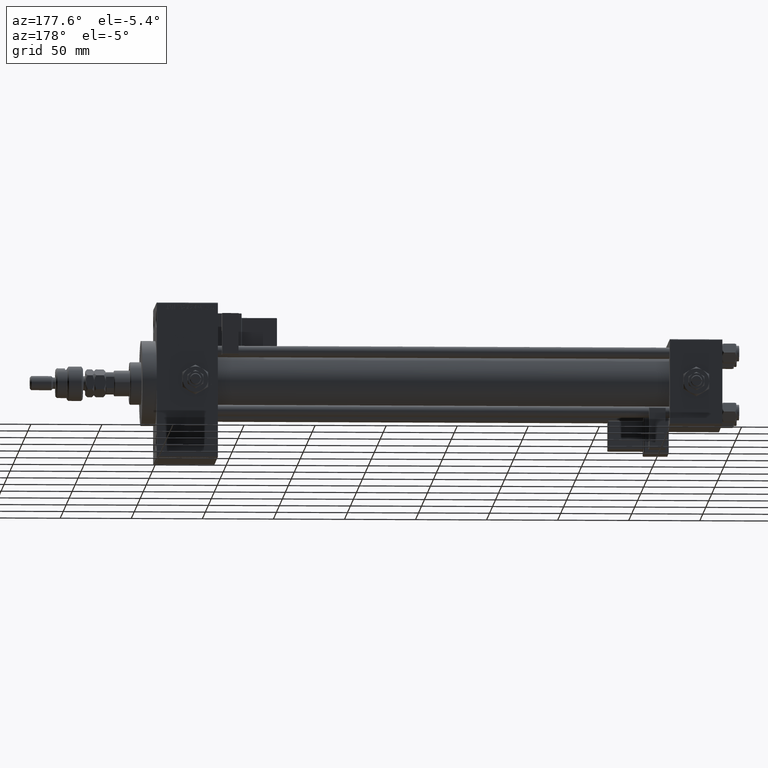
[diagram: clean part render]
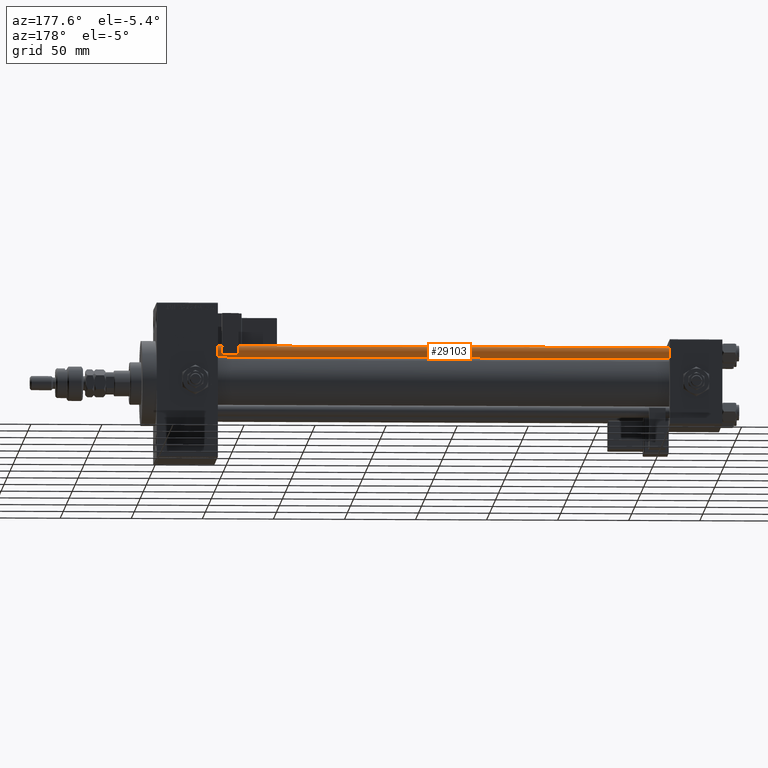
[diagram: same view with one face highlighted and labeled with its STEP entity id]
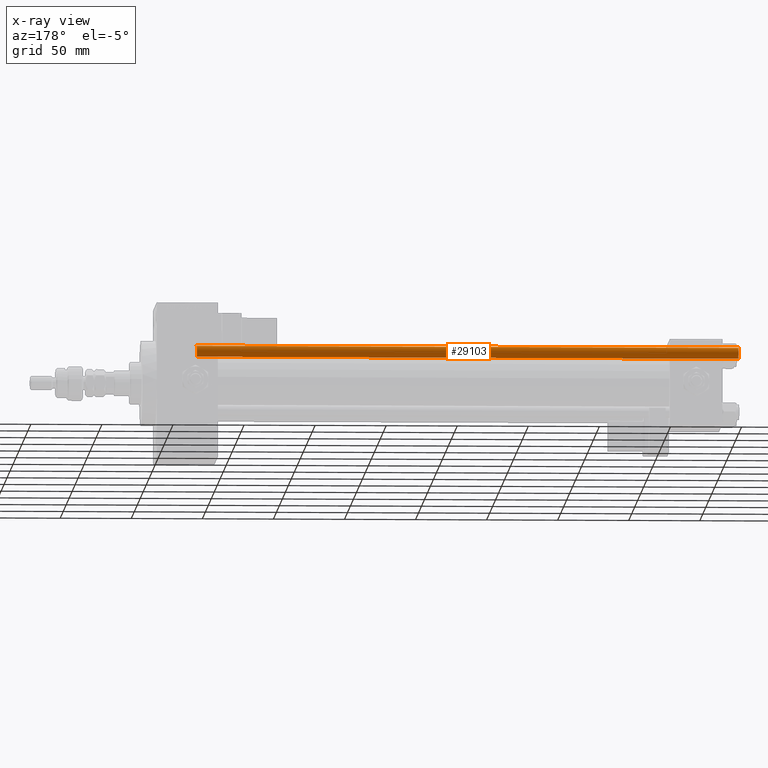
[diagram: x-ray of the same camera — body ghosted, the highlighted face saturated]
A machine part, auxiliary view. The second image highlights one B-rep face of the part: STEP entity #29103.
The next image is the same camera in x-ray: the body ghosted, the highlighted face saturated — about 0% of this face is hidden behind the body in this view.
In plain terms, the highlighted cylindrical surface (edge-blend (fillet) strip) has radius 4 mm, axis along (-1, -0, 0).
Its self-contained STEP definition (entity closure, byte-faithful):
#510 = AXIS2_PLACEMENT_3D ( 'NONE', #44819, #36306, #36030 ) ;
#787 = EDGE_CURVE ( 'NONE', #7305, #53220, #5311, .T. ) ;
#2164 = CARTESIAN_POINT ( 'NONE',  ( -4.000000000000000000, 0.000000000000000000, 0.5000000000000559552 ) ) ;
#2701 = VECTOR ( 'NONE', #49748, 1000.000000000000000 ) ;
#5311 = LINE ( 'NONE', #38821, #6866 ) ;
#6866 = VECTOR ( 'NONE', #9172, 1000.000000000000000 ) ;
#7305 = VERTEX_POINT ( 'NONE', #41522 ) ;
#7905 = FACE_OUTER_BOUND ( 'NONE', #21553, .T. ) ;
#9172 = DIRECTION ( 'NONE',  ( -0.000000000000000000, -0.000000000000000000, -1.000000000000000000 ) ) ;
#9271 = CIRCLE ( 'NONE', #510, 4.000000000000000000 ) ;
#12071 = ORIENTED_EDGE ( 'NONE', *, *, #20476, .T. ) ;
#14481 = ORIENTED_EDGE ( 'NONE', *, *, #44529, .T. ) ;
#14575 = CIRCLE ( 'NONE', #48687, 4.000000000000000000 ) ;
#15600 = CARTESIAN_POINT ( 'NONE',  ( 0.000000000000000000, 0.000000000000000000, 382.0000000000000000 ) ) ;
#17384 = ORIENTED_EDGE ( 'NONE', *, *, #30814, .T. ) ;
#20476 = EDGE_CURVE ( 'NONE', #25772, #53220, #14575, .T. ) ;
#20767 = DIRECTION ( 'NONE',  ( 1.000000000000000000, 0.000000000000000000, 0.000000000000000000 ) ) ;
#21553 = EDGE_LOOP ( 'NONE', ( #17384, #14481, #12071, #43607 ) ) ;
#24644 = DIRECTION ( 'NONE',  ( -0.000000000000000000, -0.000000000000000000, -1.000000000000000000 ) ) ;
#25006 = LINE ( 'NONE', #53596, #2701 ) ;
#25772 = VERTEX_POINT ( 'NONE', #36170 ) ;
#28264 = VERTEX_POINT ( 'NONE', #37635 ) ;
#29103 = ADVANCED_FACE ( 'NONE', ( #7905 ), #40592, .T. ) ;
#30814 = EDGE_CURVE ( 'NONE', #7305, #28264, #9271, .T. ) ;
#32329 = DIRECTION ( 'NONE',  ( -1.000000000000000000, 0.000000000000000000, 0.000000000000000000 ) ) ;
#33655 = DIRECTION ( 'NONE',  ( -0.000000000000000000, -0.000000000000000000, 1.000000000000000000 ) ) ;
#36030 = DIRECTION ( 'NONE',  ( 1.000000000000000000, 0.000000000000000000, 0.000000000000000000 ) ) ;
#36170 = CARTESIAN_POINT ( 'NONE',  ( 4.000000000000000000, 4.898587196589412829E-16, 0.5000000000000559552 ) ) ;
#36306 = DIRECTION ( 'NONE',  ( 0.000000000000000000, 0.000000000000000000, -1.000000000000000000 ) ) ;
#37635 = CARTESIAN_POINT ( 'NONE',  ( 4.000000000000000000, 4.898587196589412829E-16, 381.5000000000000568 ) ) ;
#38821 = CARTESIAN_POINT ( 'NONE',  ( -4.000000000000000000, 0.000000000000000000, 382.0000000000000000 ) ) ;
#40592 = CYLINDRICAL_SURFACE ( 'NONE', #51310, 4.000000000000000000 ) ;
#41376 = CARTESIAN_POINT ( 'NONE',  ( 0.000000000000000000, 0.000000000000000000, 0.5000000000000559552 ) ) ;
#41522 = CARTESIAN_POINT ( 'NONE',  ( -4.000000000000000000, 0.000000000000000000, 381.5000000000000568 ) ) ;
#43607 = ORIENTED_EDGE ( 'NONE', *, *, #787, .F. ) ;
#44529 = EDGE_CURVE ( 'NONE', #28264, #25772, #25006, .T. ) ;
#44819 = CARTESIAN_POINT ( 'NONE',  ( 0.000000000000000000, 0.000000000000000000, 381.5000000000000568 ) ) ;
#48687 = AXIS2_PLACEMENT_3D ( 'NONE', #41376, #33655, #20767 ) ;
#49748 = DIRECTION ( 'NONE',  ( -0.000000000000000000, -0.000000000000000000, -1.000000000000000000 ) ) ;
#51310 = AXIS2_PLACEMENT_3D ( 'NONE', #15600, #24644, #32329 ) ;
#53220 = VERTEX_POINT ( 'NONE', #2164 ) ;
#53596 = CARTESIAN_POINT ( 'NONE',  ( 4.000000000000000000, 4.898587196589412829E-16, 382.0000000000000000 ) ) ;